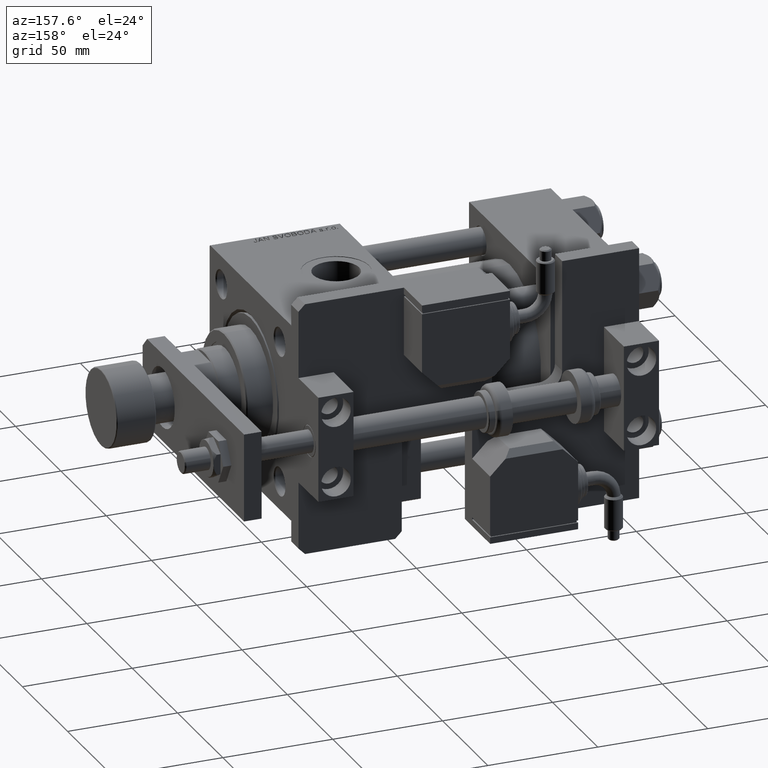
[diagram: clean part render]
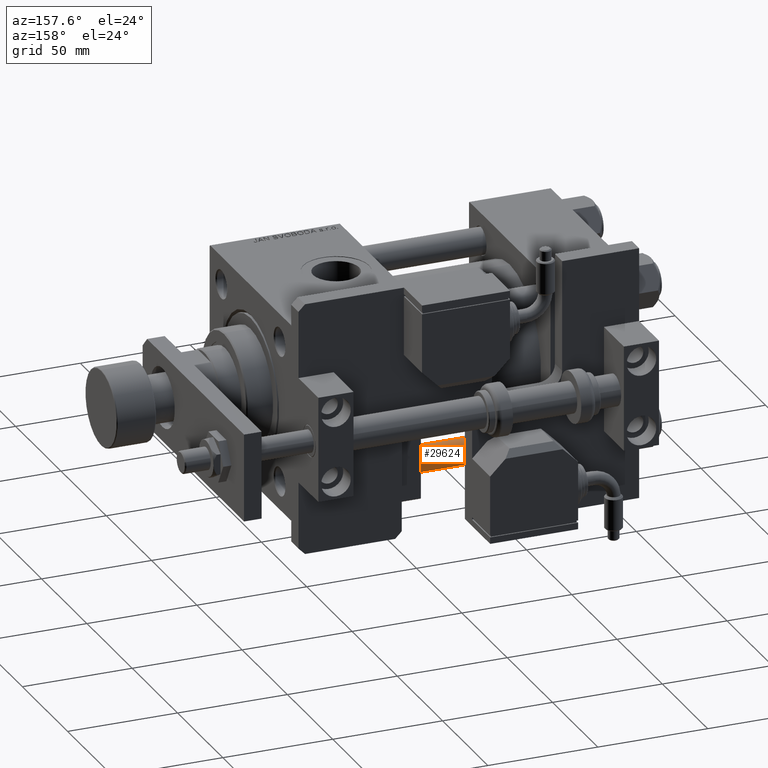
[diagram: same view with one face highlighted and labeled with its STEP entity id]
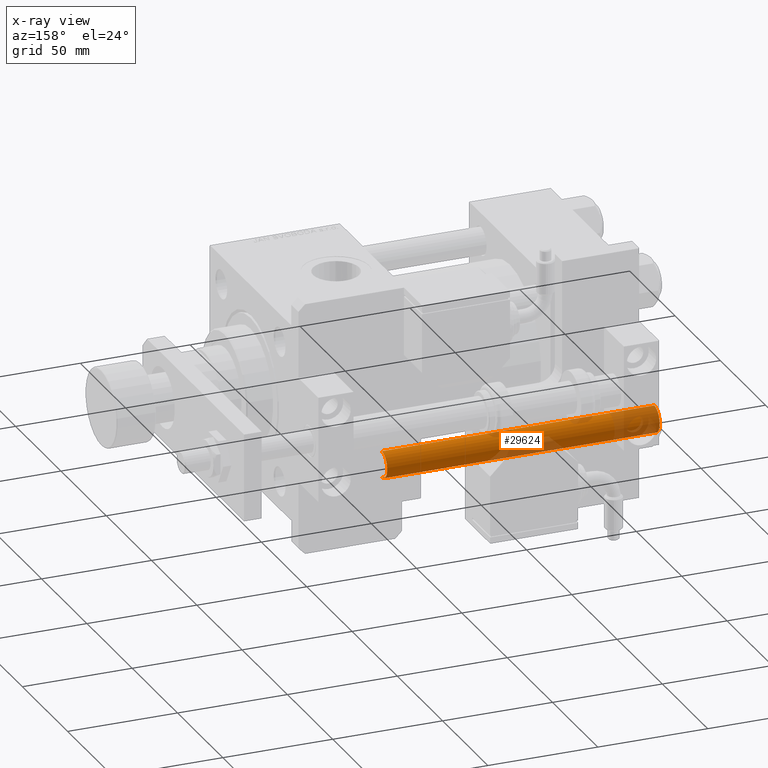
[diagram: x-ray of the same camera — body ghosted, the highlighted face saturated]
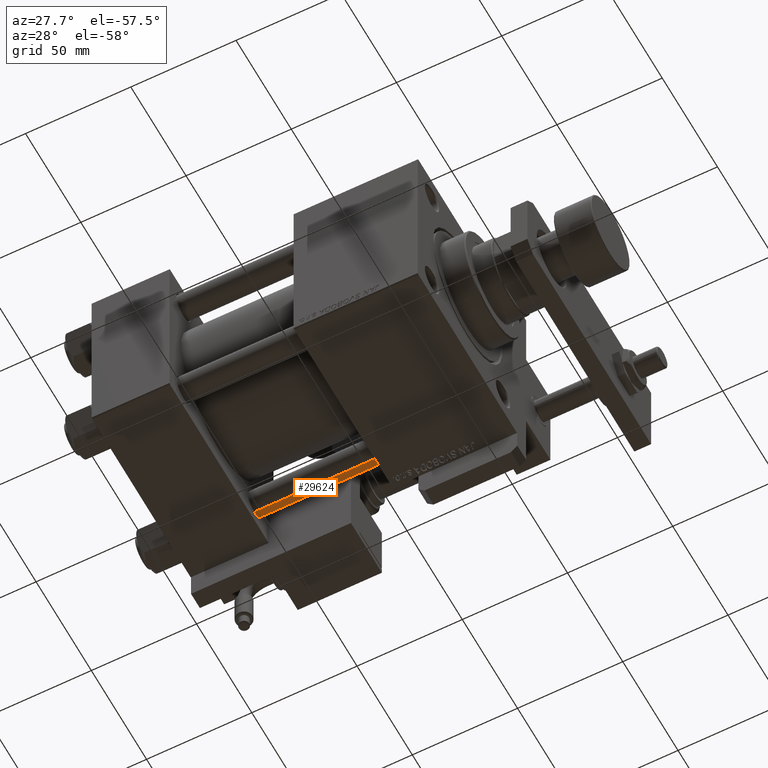
[diagram: same view with one face highlighted and labeled with its STEP entity id]
A machine part, auxiliary view. The second image highlights one B-rep face of the part: STEP entity #29624.
The next image is the same camera in x-ray: the body ghosted, the highlighted face saturated — about 29% of this face is hidden behind the body in this view.
A second angle (auxiliary view) of the same face is appended — the face is thin or edge-on in the first view.
In plain terms, the highlighted cylindrical surface (edge-blend (fillet) strip) has radius 6 mm, axis along (1, -0, -0).
Its self-contained STEP definition (entity closure, byte-faithful):
#5547 = DIRECTION ( 'NONE',  ( -0.000000000000000000, -0.000000000000000000, -1.000000000000000000 ) ) ;
#7438 = VERTEX_POINT ( 'NONE', #53808 ) ;
#7516 = VECTOR ( 'NONE', #53259, 1000.000000000000000 ) ;
#7785 = VECTOR ( 'NONE', #18352, 1000.000000000000000 ) ;
#10240 = CYLINDRICAL_SURFACE ( 'NONE', #13560, 6.000000000000000888 ) ;
#11236 = EDGE_CURVE ( 'NONE', #7438, #21662, #36163, .T. ) ;
#13476 = FACE_OUTER_BOUND ( 'NONE', #19013, .T. ) ;
#13560 = AXIS2_PLACEMENT_3D ( 'NONE', #17864, #5547, #54740 ) ;
#13702 = ORIENTED_EDGE ( 'NONE', *, *, #11236, .T. ) ;
#17864 = CARTESIAN_POINT ( 'NONE',  ( 0.000000000000000000, 0.000000000000000000, 125.0000000000000000 ) ) ;
#18352 = DIRECTION ( 'NONE',  ( -0.000000000000000000, -0.000000000000000000, -1.000000000000000000 ) ) ;
#19013 = EDGE_LOOP ( 'NONE', ( #34323, #22009, #13702, #48718 ) ) ;
#19050 = DIRECTION ( 'NONE',  ( 1.000000000000000000, 0.000000000000000000, 0.000000000000000000 ) ) ;
#21662 = VERTEX_POINT ( 'NONE', #36609 ) ;
#22009 = ORIENTED_EDGE ( 'NONE', *, *, #26079, .T. ) ;
#23043 = LINE ( 'NONE', #40911, #7785 ) ;
#25193 = CARTESIAN_POINT ( 'NONE',  ( 6.000000000000000888, 7.347880794884120722E-16, 124.5000000000000000 ) ) ;
#26079 = EDGE_CURVE ( 'NONE', #41863, #7438, #23043, .T. ) ;
#27685 = CARTESIAN_POINT ( 'NONE',  ( 0.000000000000000000, 0.000000000000000000, 0.4999999999999865663 ) ) ;
#27979 = DIRECTION ( 'NONE',  ( -0.000000000000000000, -0.000000000000000000, 1.000000000000000000 ) ) ;
#29624 = ADVANCED_FACE ( 'NONE', ( #13476 ), #10240, .T. ) ;
#31018 = CARTESIAN_POINT ( 'NONE',  ( -6.000000000000000888, 0.000000000000000000, 125.0000000000000000 ) ) ;
#34323 = ORIENTED_EDGE ( 'NONE', *, *, #40835, .T. ) ;
#34437 = AXIS2_PLACEMENT_3D ( 'NONE', #46866, #45998, #19050 ) ;
#36163 = CIRCLE ( 'NONE', #49292, 6.000000000000000888 ) ;
#36609 = CARTESIAN_POINT ( 'NONE',  ( -6.000000000000000888, 0.000000000000000000, 0.4999999999999865663 ) ) ;
#40835 = EDGE_CURVE ( 'NONE', #51240, #41863, #57804, .T. ) ;
#40911 = CARTESIAN_POINT ( 'NONE',  ( 6.000000000000000888, 7.347880794884120722E-16, 125.0000000000000000 ) ) ;
#41863 = VERTEX_POINT ( 'NONE', #25193 ) ;
#45998 = DIRECTION ( 'NONE',  ( 0.000000000000000000, 0.000000000000000000, -1.000000000000000000 ) ) ;
#46330 = EDGE_CURVE ( 'NONE', #51240, #21662, #54924, .T. ) ;
#46866 = CARTESIAN_POINT ( 'NONE',  ( 0.000000000000000000, 0.000000000000000000, 124.5000000000000000 ) ) ;
#48718 = ORIENTED_EDGE ( 'NONE', *, *, #46330, .F. ) ;
#49292 = AXIS2_PLACEMENT_3D ( 'NONE', #27685, #27979, #50236 ) ;
#50236 = DIRECTION ( 'NONE',  ( 1.000000000000000000, 0.000000000000000000, 0.000000000000000000 ) ) ;
#51240 = VERTEX_POINT ( 'NONE', #53833 ) ;
#53259 = DIRECTION ( 'NONE',  ( -0.000000000000000000, -0.000000000000000000, -1.000000000000000000 ) ) ;
#53808 = CARTESIAN_POINT ( 'NONE',  ( 6.000000000000000888, 7.347880794884120722E-16, 0.4999999999999865663 ) ) ;
#53833 = CARTESIAN_POINT ( 'NONE',  ( -6.000000000000000888, 0.000000000000000000, 124.5000000000000000 ) ) ;
#54740 = DIRECTION ( 'NONE',  ( -1.000000000000000000, 0.000000000000000000, 0.000000000000000000 ) ) ;
#54924 = LINE ( 'NONE', #31018, #7516 ) ;
#57804 = CIRCLE ( 'NONE', #34437, 6.000000000000000888 ) ;